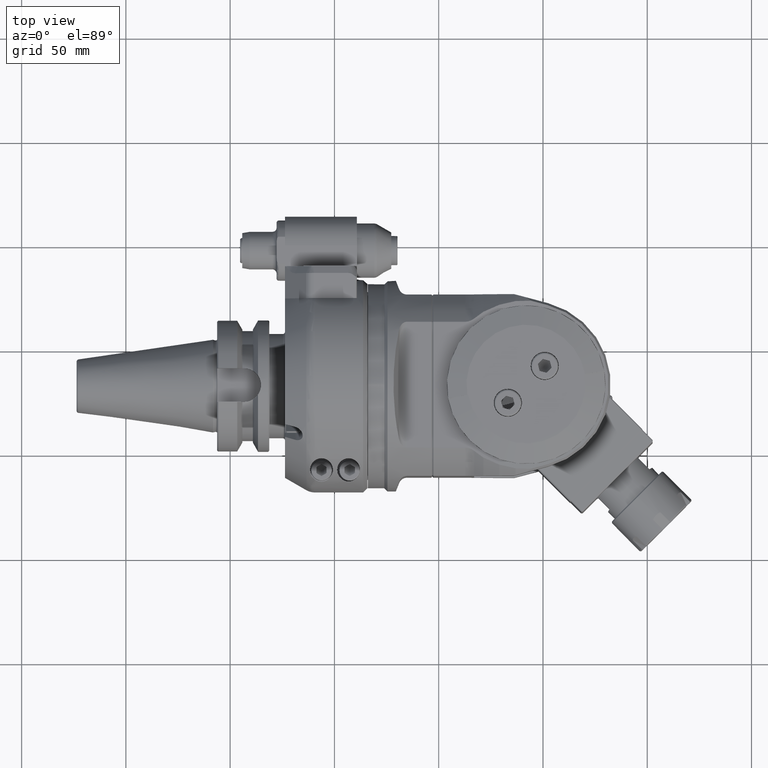
[diagram: clean part render]
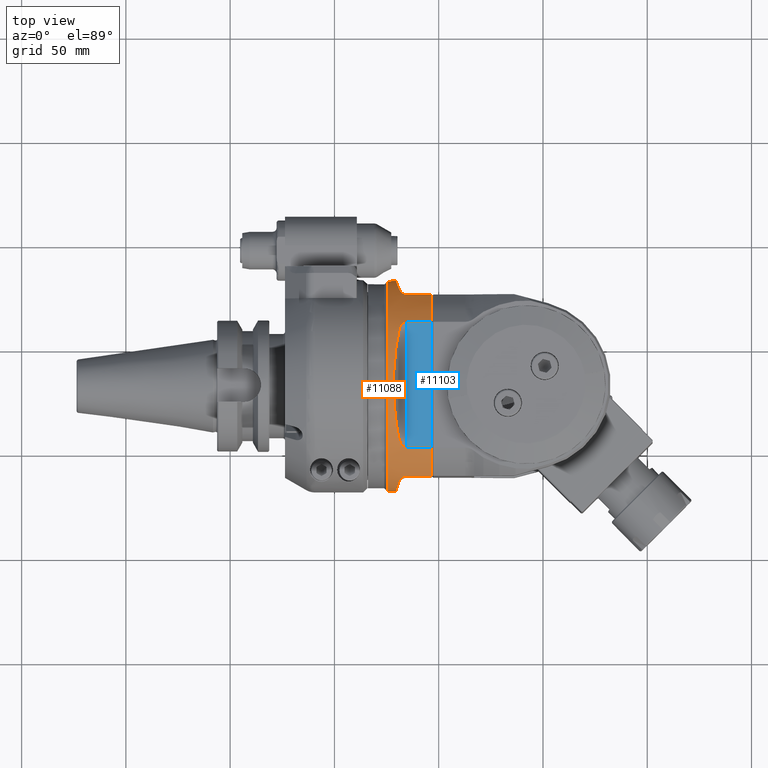
[diagram: same view with the hole feature highlighted: cylindrical wall and planar end face, labeled with their STEP entity ids]
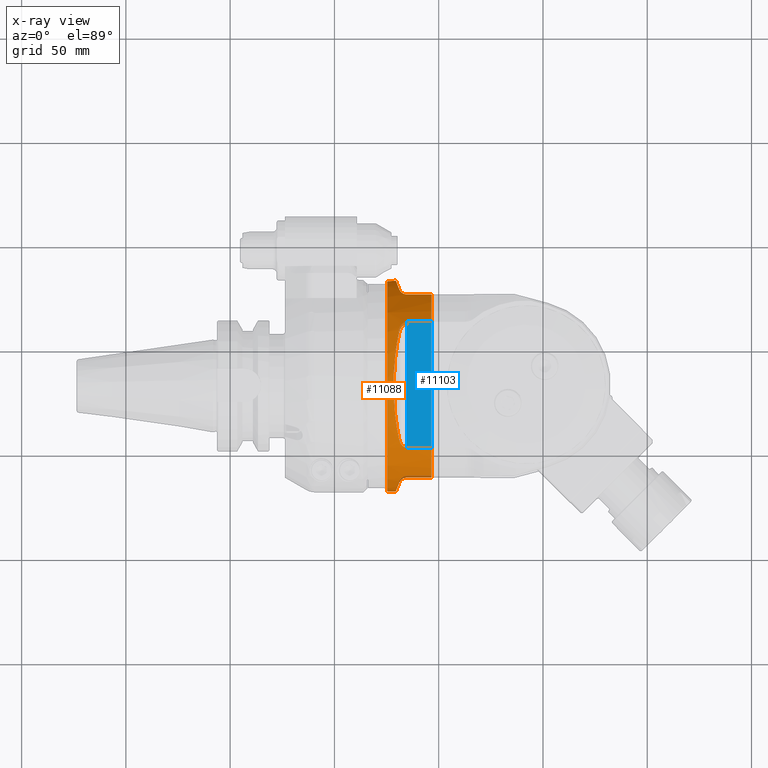
[diagram: x-ray of the same camera — body ghosted, the hole faces saturated]
A machine part, top view. The highlighted faces form one hole feature of diameter 101 mm: the cylindrical wall (entity #11088, orange) and its adjacent planar end face (entity #11103, blue) — they share a circular edge in the B-rep.
The next image is the same camera in x-ray (body ghosted, the hole faces saturated) — the bore reads through the body.
Wall:
#27=ELLIPSE('',#12123,53.7409775100342,50.5);
#28=ELLIPSE('',#12124,53.7409775100342,50.5);
#29=ELLIPSE('',#12125,53.7409775100342,50.5);
#30=ELLIPSE('',#12126,53.7409775100342,50.5);
#31=ELLIPSE('',#12127,53.7409775100342,50.5);
#1278=FACE_OUTER_BOUND('',#1998,.T.);
#1998=EDGE_LOOP('',(#9263,#9264,#9265,#9266,#9267,#9268,#9269,#9270,#9271,
#9272,#9273,#9274,#9275,#9276,#9277,#9278,#9279,#9280,#9281,#9282,#9283,
#9284,#9285,#9286,#9287,#9288,#9289,#9290));
#2629=CIRCLE('',#12111,50.5);
#2630=CIRCLE('',#12114,50.5);
#2631=CIRCLE('',#12118,50.5);
#2632=CIRCLE('',#12121,50.5);
#2633=CIRCLE('',#12128,50.5);
#2902=B_SPLINE_CURVE_WITH_KNOTS('',3,(#48979,#48980,#48981,#48982,#48983,
#48984,#48985,#48986,#48987,#48988,#48989,#48990),.UNSPECIFIED.,.F.,.F.,
(4,2,2,2,2,4),(0.,0.0707986919929739,0.141597383985948,0.283194767971895,
0.489170114231951,0.707654054014349),.UNSPECIFIED.);
#2903=B_SPLINE_CURVE_WITH_KNOTS('',3,(#48995,#48996,#48997,#48998,#48999,
#49000,#49001,#49002,#49003,#49004,#49005,#49006),.UNSPECIFIED.,.F.,.F.,
(4,2,2,2,2,4),(1.39221714496115,1.42895711617555,1.72925476842741,1.87448330676103,
1.94709757592783,2.01971184509464),.UNSPECIFIED.);
#2904=B_SPLINE_CURVE_WITH_KNOTS('',3,(#49010,#49011,#49012,#49013,#49014,
#49015,#49016,#49017,#49018,#49019,#49020,#49021),.UNSPECIFIED.,.F.,.F.,
(4,2,2,2,2,4),(2.01971184509464,2.09232611426145,2.16494038342826,2.31016892176187,
2.61046657401374,2.64720654523586),.UNSPECIFIED.);
#2905=B_SPLINE_CURVE_WITH_KNOTS('',3,(#49026,#49027,#49028,#49029,#49030,
#49031,#49032,#49033,#49034,#49035,#49036,#49037),.UNSPECIFIED.,.F.,.F.,
(4,2,2,2,2,4),(4.72371969336659,4.94220363315019,5.14817897941024,5.28977636339619,
5.36057505538916,5.43137374738214),.UNSPECIFIED.);
#2906=B_SPLINE_CURVE_WITH_KNOTS('',3,(#49041,#49042,#49043,#49044,#49045,
#49046,#49047,#49048,#49049,#49050,#49051,#49052),.UNSPECIFIED.,.F.,.F.,
(4,2,2,2,2,4),(0.,0.0707986919929739,0.141597383985948,0.283194767971896,
0.489170114231951,0.707654054014349),.UNSPECIFIED.);
#2907=B_SPLINE_CURVE_WITH_KNOTS('',3,(#49057,#49058,#49059,#49060,#49061,
#49062,#49063,#49064,#49065,#49066,#49067,#49068),.UNSPECIFIED.,.F.,.F.,
(4,2,2,2,2,4),(3.41192899004806,3.44866896127019,3.74896661352205,3.89419515185567,
3.96680942102248,4.03942369018928),.UNSPECIFIED.);
#2908=B_SPLINE_CURVE_WITH_KNOTS('',3,(#49072,#49073,#49074,#49075,#49076,
#49077,#49078,#49079,#49080,#49081,#49082,#49083),.UNSPECIFIED.,.F.,.F.,
(4,2,2,2,2,4),(0.,0.0726142691668075,0.145228538333615,0.29045707666723,
0.590754728919096,0.62749470014656),.UNSPECIFIED.);
#2909=B_SPLINE_CURVE_WITH_KNOTS('',3,(#49088,#49089,#49090,#49091,#49092,
#49093,#49094,#49095,#49096,#49097,#49098,#49099),.UNSPECIFIED.,.F.,.F.,
(4,2,2,2,2,4),(4.72371969336659,4.94220363315019,5.14817897941024,5.28977636339619,
5.36057505538916,5.43137374738214),.UNSPECIFIED.);
#3390=LINE('',#48991,#4204);
#3391=LINE('',#48993,#4205);
#3392=LINE('',#49022,#4206);
#3393=LINE('',#49024,#4207);
#3394=LINE('',#49053,#4208);
#3395=LINE('',#49055,#4209);
#3396=LINE('',#49084,#4210);
#3397=LINE('',#49086,#4211);
#3398=LINE('',#49102,#4212);
#4204=VECTOR('',#14455,11.69916984716);
#4205=VECTOR('',#14456,11.69916984716);
#4206=VECTOR('',#14459,11.69916984716);
#4207=VECTOR('',#14460,11.69916984716);
#4208=VECTOR('',#14463,11.69916984716);
#4209=VECTOR('',#14464,11.69916984716);
#4210=VECTOR('',#14467,11.69916984716);
#4211=VECTOR('',#14468,11.69916984716);
#4212=VECTOR('',#14471,50.5);
#5237=VERTEX_POINT('',#48925);
#5238=VERTEX_POINT('',#48929);
#5239=VERTEX_POINT('',#48935);
#5240=VERTEX_POINT('',#48941);
#5241=VERTEX_POINT('',#48947);
#5242=VERTEX_POINT('',#48954);
#5243=VERTEX_POINT('',#48961);
#5244=VERTEX_POINT('',#48967);
#5245=VERTEX_POINT('',#48975);
#5246=VERTEX_POINT('',#48976);
#5247=VERTEX_POINT('',#48978);
#5248=VERTEX_POINT('',#48992);
#5249=VERTEX_POINT('',#48994);
#5250=VERTEX_POINT('',#49007);
#5251=VERTEX_POINT('',#49009);
#5252=VERTEX_POINT('',#49023);
#5253=VERTEX_POINT('',#49025);
#5254=VERTEX_POINT('',#49038);
#5255=VERTEX_POINT('',#49040);
#5256=VERTEX_POINT('',#49054);
#5257=VERTEX_POINT('',#49056);
#5258=VERTEX_POINT('',#49069);
#5259=VERTEX_POINT('',#49071);
#5260=VERTEX_POINT('',#49085);
#5261=VERTEX_POINT('',#49087);
#5262=VERTEX_POINT('',#49101);
#6649=EDGE_CURVE('',#5238,#5239,#2629,.T.);
#6653=EDGE_CURVE('',#5240,#5241,#2630,.T.);
#6658=EDGE_CURVE('',#5242,#5243,#2631,.T.);
#6662=EDGE_CURVE('',#5244,#5237,#2632,.T.);
#6663=EDGE_CURVE('',#5245,#5246,#27,.T.);
#6664=EDGE_CURVE('',#5247,#5245,#2902,.T.);
#6665=EDGE_CURVE('',#5247,#5243,#3390,.T.);
#6666=EDGE_CURVE('',#5242,#5248,#3391,.T.);
#6667=EDGE_CURVE('',#5249,#5248,#2903,.T.);
#6668=EDGE_CURVE('',#5250,#5249,#28,.T.);
#6669=EDGE_CURVE('',#5251,#5250,#2904,.T.);
#6670=EDGE_CURVE('',#5251,#5241,#3392,.T.);
#6671=EDGE_CURVE('',#5240,#5252,#3393,.T.);
#6672=EDGE_CURVE('',#5253,#5252,#2905,.T.);
#6673=EDGE_CURVE('',#5254,#5253,#29,.T.);
#6674=EDGE_CURVE('',#5255,#5254,#2906,.T.);
#6675=EDGE_CURVE('',#5255,#5239,#3394,.T.);
#6676=EDGE_CURVE('',#5238,#5256,#3395,.T.);
#6677=EDGE_CURVE('',#5257,#5256,#2907,.T.);
#6678=EDGE_CURVE('',#5258,#5257,#30,.T.);
#6679=EDGE_CURVE('',#5259,#5258,#2908,.T.);
#6680=EDGE_CURVE('',#5259,#5237,#3396,.T.);
#6681=EDGE_CURVE('',#5244,#5260,#3397,.T.);
#6682=EDGE_CURVE('',#5261,#5260,#2909,.T.);
#6683=EDGE_CURVE('',#5246,#5261,#31,.T.);
#6684=EDGE_CURVE('',#5246,#5262,#3398,.T.);
#6685=EDGE_CURVE('',#5262,#5262,#2633,.T.);
#9263=ORIENTED_EDGE('',*,*,#6663,.F.);
#9264=ORIENTED_EDGE('',*,*,#6664,.F.);
#9265=ORIENTED_EDGE('',*,*,#6665,.T.);
#9266=ORIENTED_EDGE('',*,*,#6658,.F.);
#9267=ORIENTED_EDGE('',*,*,#6666,.T.);
#9268=ORIENTED_EDGE('',*,*,#6667,.F.);
#9269=ORIENTED_EDGE('',*,*,#6668,.F.);
#9270=ORIENTED_EDGE('',*,*,#6669,.F.);
#9271=ORIENTED_EDGE('',*,*,#6670,.T.);
#9272=ORIENTED_EDGE('',*,*,#6653,.F.);
#9273=ORIENTED_EDGE('',*,*,#6671,.T.);
#9274=ORIENTED_EDGE('',*,*,#6672,.F.);
#9275=ORIENTED_EDGE('',*,*,#6673,.F.);
#9276=ORIENTED_EDGE('',*,*,#6674,.F.);
#9277=ORIENTED_EDGE('',*,*,#6675,.T.);
#9278=ORIENTED_EDGE('',*,*,#6649,.F.);
#9279=ORIENTED_EDGE('',*,*,#6676,.T.);
#9280=ORIENTED_EDGE('',*,*,#6677,.F.);
#9281=ORIENTED_EDGE('',*,*,#6678,.F.);
#9282=ORIENTED_EDGE('',*,*,#6679,.F.);
#9283=ORIENTED_EDGE('',*,*,#6680,.T.);
#9284=ORIENTED_EDGE('',*,*,#6662,.F.);
#9285=ORIENTED_EDGE('',*,*,#6681,.T.);
#9286=ORIENTED_EDGE('',*,*,#6682,.F.);
#9287=ORIENTED_EDGE('',*,*,#6683,.F.);
#9288=ORIENTED_EDGE('',*,*,#6684,.T.);
#9289=ORIENTED_EDGE('',*,*,#6685,.F.);
#9290=ORIENTED_EDGE('',*,*,#6684,.F.);
#10646=CYLINDRICAL_SURFACE('',#12122,50.5);
#11088=ADVANCED_FACE('',(#1278),#10646,.T.);
#12111=AXIS2_PLACEMENT_3D('',#48936,#14425,#14426);
#12114=AXIS2_PLACEMENT_3D('',#48948,#14432,#14433);
#12118=AXIS2_PLACEMENT_3D('',#48962,#14442,#14443);
#12121=AXIS2_PLACEMENT_3D('',#48973,#14449,#14450);
#12122=AXIS2_PLACEMENT_3D('',#48974,#14451,#14452);
#12123=AXIS2_PLACEMENT_3D('',#48977,#14453,#14454);
#12124=AXIS2_PLACEMENT_3D('',#49008,#14457,#14458);
#12125=AXIS2_PLACEMENT_3D('',#49039,#14461,#14462);
#12126=AXIS2_PLACEMENT_3D('',#49070,#14465,#14466);
#12127=AXIS2_PLACEMENT_3D('',#49100,#14469,#14470);
#12128=AXIS2_PLACEMENT_3D('',#49103,#14472,#14473);
#14425=DIRECTION('center_axis',(1.,0.,0.));
#14426=DIRECTION('ref_axis',(0.,-0.801980198019817,-0.597350618970212));
#14432=DIRECTION('center_axis',(1.,0.,0.));
#14433=DIRECTION('ref_axis',(0.,0.507950706470489,-0.861386138613881));
#14442=DIRECTION('center_axis',(1.,0.,0.));
#14443=DIRECTION('ref_axis',(0.,0.801980198019817,0.597350618970212));
#14449=DIRECTION('center_axis',(1.,0.,0.));
#14450=DIRECTION('ref_axis',(0.,-0.507950706470489,0.861386138613881));
#14451=DIRECTION('center_axis',(1.,0.,0.));
#14452=DIRECTION('ref_axis',(0.,0.,-1.));
#14453=DIRECTION('center_axis',(0.939692620785897,0.,0.342020143325699));
#14454=DIRECTION('ref_axis',(0.342020143325699,0.,-0.939692620785897));
#14455=DIRECTION('',(1.,1.305790839728E-14,0.));
#14456=DIRECTION('',(-1.,1.639830356867E-14,-4.798022155279E-14));
#14457=DIRECTION('center_axis',(0.939692620785897,0.342020143325699,0.));
#14458=DIRECTION('ref_axis',(-0.342020143325699,0.939692620785897,0.));
#14459=DIRECTION('',(1.,-1.600960303964E-12,-4.855112545481E-12));
#14460=DIRECTION('',(-1.,-7.488558629694E-13,-2.058898114733E-13));
#14461=DIRECTION('center_axis',(0.939692620785897,0.,-0.342020143325699));
#14462=DIRECTION('ref_axis',(-0.342020143325699,0.,-0.939692620785897));
#14463=DIRECTION('',(1.,-4.823226955208E-12,1.311864285494E-12));
#14464=DIRECTION('',(-1.,-1.60156764854E-12,4.853594184039E-12));
#14465=DIRECTION('center_axis',(0.939692620785897,-0.342020143325699,0.));
#14466=DIRECTION('ref_axis',(0.342020143325699,0.939692620785897,0.));
#14467=DIRECTION('',(1.,1.579095899206E-14,4.85875661294E-14));
#14468=DIRECTION('',(-1.,0.,0.));
#14469=DIRECTION('center_axis',(0.939692620785897,0.,0.342020143325699));
#14470=DIRECTION('ref_axis',(0.342020143325699,0.,-0.939692620785897));
#14471=DIRECTION('',(-1.,0.,0.));
#14472=DIRECTION('center_axis',(-1.,0.,0.));
#14473=DIRECTION('ref_axis',(0.,0.,-1.));
#48925=CARTESIAN_POINT('',(61.5,-40.5,30.166206258));
#48929=CARTESIAN_POINT('',(61.5,-40.49999999998,-30.16620625805));
#48935=CARTESIAN_POINT('',(61.5,-25.65151067682,-43.49999999998));
#48936=CARTESIAN_POINT('Origin',(61.5,0.,0.));
#48941=CARTESIAN_POINT('',(61.5,25.65151067676,-43.5));
#48947=CARTESIAN_POINT('',(61.5,40.49999999998,-30.16620625805));
#48948=CARTESIAN_POINT('Origin',(61.5,0.,0.));
#48954=CARTESIAN_POINT('',(61.5,40.5,30.166206258));
#48961=CARTESIAN_POINT('',(61.5,25.65151067676,43.5));
#48962=CARTESIAN_POINT('Origin',(61.5,0.,0.));
#48967=CARTESIAN_POINT('',(61.5,-25.65151067676,43.5));
#48973=CARTESIAN_POINT('Origin',(61.5,0.,0.));
#48974=CARTESIAN_POINT('Origin',(54.,0.,0.));
#48975=CARTESIAN_POINT('',(46.0420596697,20.54497529833,46.13191942669));
#48976=CARTESIAN_POINT('',(44.4522083601363,-6.18446633569414E-15,50.5));
#48977=CARTESIAN_POINT('Origin',(62.8327051905814,0.,0.));
#48978=CARTESIAN_POINT('',(49.80083015284,25.65151067676,43.5));
#48979=CARTESIAN_POINT('Ctrl Pts',(49.80083015284,25.6515106767613,43.5));
#48980=CARTESIAN_POINT('Ctrl Pts',(49.5648345128634,25.6515106767613,43.5));
#48981=CARTESIAN_POINT('Ctrl Pts',(49.3312898173344,25.6157360957754,43.5211459292709));
#48982=CARTESIAN_POINT('Ctrl Pts',(48.8832183341842,25.4812309673765,43.6000337972868));
#48983=CARTESIAN_POINT('Ctrl Pts',(48.6686765546346,25.3825233441242,43.6577296610543));
#48984=CARTESIAN_POINT('Ctrl Pts',(48.0698485572236,25.0165055154328,43.8691676187085));
#48985=CARTESIAN_POINT('Ctrl Pts',(47.7306494574058,24.6766133655279,44.0620967126081));
#48986=CARTESIAN_POINT('Ctrl Pts',(47.0851084812424,23.8335951861058,44.5256644059013));
#48987=CARTESIAN_POINT('Ctrl Pts',(46.7583041254923,23.1646164421368,44.8784814200201));
#48988=CARTESIAN_POINT('Ctrl Pts',(46.3267854903414,21.9593562597412,45.480960058923));
#48989=CARTESIAN_POINT('Ctrl Pts',(46.1585318980655,21.2635177273003,45.8119146092607));
#48990=CARTESIAN_POINT('Ctrl Pts',(46.0420596696978,20.5449752983319,46.1319194266934));
#48991=CARTESIAN_POINT('',(49.80083015284,25.65151067676,43.5));
#48992=CARTESIAN_POINT('',(49.80083015284,40.5,30.166206258));
#48993=CARTESIAN_POINT('',(61.5,40.5,30.166206258));
#48994=CARTESIAN_POINT('',(46.04205966972,43.13191942663,26.26571009082));
#48995=CARTESIAN_POINT('Ctrl Pts',(46.0420596697218,43.1319194266276,26.2657100908181));
#48996=CARTESIAN_POINT('Ctrl Pts',(46.0665039590391,43.0647592936975,26.3759962940924));
#48997=CARTESIAN_POINT('Ctrl Pts',(46.0930537609184,42.9974152250804,26.485631110282));
#48998=CARTESIAN_POINT('Ctrl Pts',(46.3568291682656,42.3792892606509,27.4834414244347));
#48999=CARTESIAN_POINT('Ctrl Pts',(46.7350482404286,41.8235190742942,28.3142784956545));
#49000=CARTESIAN_POINT('Ctrl Pts',(47.60883448171,41.1344791338858,29.2977447429081));
#49001=CARTESIAN_POINT('Ctrl Pts',(47.9765708439716,40.9112089177917,29.6073565647294));
#49002=CARTESIAN_POINT('Ctrl Pts',(48.6165518211133,40.6725565576759,29.933447583433));
#49003=CARTESIAN_POINT('Ctrl Pts',(48.8444950004048,40.6086287085637,30.0199021234794));
#49004=CARTESIAN_POINT('Ctrl Pts',(49.315601618798,40.522324707648,30.1362978710057));
#49005=CARTESIAN_POINT('Ctrl Pts',(49.5587825889506,40.5,30.1662062579967));
#49006=CARTESIAN_POINT('Ctrl Pts',(49.80083015284,40.5,30.1662062579967));
#49007=CARTESIAN_POINT('',(46.0420596697,43.13191942667,-26.26571009075));
#49008=CARTESIAN_POINT('Origin',(61.7407944877827,0.,0.));
#49009=CARTESIAN_POINT('',(49.80083015284,40.5,-30.166206258));
#49010=CARTESIAN_POINT('Ctrl Pts',(49.80083015284,40.5,-30.1662062579967));
#49011=CARTESIAN_POINT('Ctrl Pts',(49.5587825889506,40.5,-30.1662062579967));
#49012=CARTESIAN_POINT('Ctrl Pts',(49.315601618798,40.522324707648,-30.1362978710057));
#49013=CARTESIAN_POINT('Ctrl Pts',(48.8444950004048,40.6086287085637,-30.0199021234794));
#49014=CARTESIAN_POINT('Ctrl Pts',(48.6165518211133,40.6725565576759,-29.933447583433));
#49015=CARTESIAN_POINT('Ctrl Pts',(47.9765708439716,40.9112089177917,-29.6073565647295));
#49016=CARTESIAN_POINT('Ctrl Pts',(47.60883448171,41.1344791338858,-29.2977447429081));
#49017=CARTESIAN_POINT('Ctrl Pts',(46.7350482404286,41.8235190742942,-28.3142784956545));
#49018=CARTESIAN_POINT('Ctrl Pts',(46.3568291682656,42.3792892606509,-27.4834414244347));
#49019=CARTESIAN_POINT('Ctrl Pts',(46.0930537609124,42.9974152250946,-26.4856311102591));
#49020=CARTESIAN_POINT('Ctrl Pts',(46.0665039590279,43.0647592937259,-26.3759962940463));
#49021=CARTESIAN_POINT('Ctrl Pts',(46.0420596697063,43.13191942667,-26.2657100907486));
#49022=CARTESIAN_POINT('',(49.80083015284,40.5,-30.166206258));
#49023=CARTESIAN_POINT('',(49.80083015284,25.65151067676,-43.5));
#49024=CARTESIAN_POINT('',(61.5,25.65151067677,-43.5));
#49025=CARTESIAN_POINT('',(46.0420596697,20.54497529832,-46.1319194267));
#49026=CARTESIAN_POINT('Ctrl Pts',(46.0420596696959,20.5449752983201,-46.1319194266987));
#49027=CARTESIAN_POINT('Ctrl Pts',(46.1585318980637,21.2635177272927,-45.8119146092643));
#49028=CARTESIAN_POINT('Ctrl Pts',(46.3267854903401,21.9593562597378,-45.4809600589247));
#49029=CARTESIAN_POINT('Ctrl Pts',(46.7583041254923,23.1646164421368,-44.8784814200201));
#49030=CARTESIAN_POINT('Ctrl Pts',(47.0851084812424,23.8335951861057,-44.5256644059013));
#49031=CARTESIAN_POINT('Ctrl Pts',(47.7306494574058,24.6766133655279,-44.0620967126081));
#49032=CARTESIAN_POINT('Ctrl Pts',(48.0698485572236,25.0165055154328,-43.8691676187085));
#49033=CARTESIAN_POINT('Ctrl Pts',(48.6686765546346,25.3825233441242,-43.6577296610543));
#49034=CARTESIAN_POINT('Ctrl Pts',(48.8832183341842,25.4812309673765,-43.6000337972868));
#49035=CARTESIAN_POINT('Ctrl Pts',(49.3312898173344,25.6157360957754,-43.5211459292709));
#49036=CARTESIAN_POINT('Ctrl Pts',(49.5648345128634,25.6515106767613,-43.5));
#49037=CARTESIAN_POINT('Ctrl Pts',(49.80083015284,25.6515106767613,-43.5));
#49038=CARTESIAN_POINT('',(46.0420596697,-20.54497529833,-46.13191942669));
#49039=CARTESIAN_POINT('Origin',(62.8327051905854,0.,0.));
#49040=CARTESIAN_POINT('',(49.80083015284,-25.65151067676,-43.5));
#49041=CARTESIAN_POINT('Ctrl Pts',(49.80083015284,-25.6515106767613,-43.5));
#49042=CARTESIAN_POINT('Ctrl Pts',(49.5648345128634,-25.6515106767613,-43.5));
#49043=CARTESIAN_POINT('Ctrl Pts',(49.3312898173344,-25.6157360957754,-43.5211459292709));
#49044=CARTESIAN_POINT('Ctrl Pts',(48.8832183341842,-25.4812309673765,-43.6000337972868));
#49045=CARTESIAN_POINT('Ctrl Pts',(48.6686765546346,-25.3825233441242,-43.6577296610543));
#49046=CARTESIAN_POINT('Ctrl Pts',(48.0698485572236,-25.0165055154328,-43.8691676187085));
#49047=CARTESIAN_POINT('Ctrl Pts',(47.7306494574058,-24.6766133655279,-44.0620967126081));
#49048=CARTESIAN_POINT('Ctrl Pts',(47.0851084812424,-23.8335951861057,-44.5256644059013));
#49049=CARTESIAN_POINT('Ctrl Pts',(46.7583041254923,-23.1646164421368,-44.8784814200201));
#49050=CARTESIAN_POINT('Ctrl Pts',(46.3267854903414,-21.9593562597412,-45.480960058923));
#49051=CARTESIAN_POINT('Ctrl Pts',(46.1585318980655,-21.2635177273003,-45.8119146092607));
#49052=CARTESIAN_POINT('Ctrl Pts',(46.0420596696978,-20.5449752983319,-46.1319194266934));
#49053=CARTESIAN_POINT('',(49.80083015284,-25.65151067676,-43.5));
#49054=CARTESIAN_POINT('',(49.80083015284,-40.5,-30.166206258));
#49055=CARTESIAN_POINT('',(61.5,-40.49999999998,-30.16620625805));
#49056=CARTESIAN_POINT('',(46.0420596697,-43.13191942667,-26.26571009075));
#49057=CARTESIAN_POINT('Ctrl Pts',(46.0420596697063,-43.13191942667,-26.2657100907486));
#49058=CARTESIAN_POINT('Ctrl Pts',(46.0665039590279,-43.0647592937259,-26.3759962940463));
#49059=CARTESIAN_POINT('Ctrl Pts',(46.0930537609124,-42.9974152250946,-26.4856311102591));
#49060=CARTESIAN_POINT('Ctrl Pts',(46.3568291682656,-42.3792892606509,-27.4834414244347));
#49061=CARTESIAN_POINT('Ctrl Pts',(46.7350482404286,-41.8235190742942,-28.3142784956545));
#49062=CARTESIAN_POINT('Ctrl Pts',(47.60883448171,-41.1344791338858,-29.2977447429081));
#49063=CARTESIAN_POINT('Ctrl Pts',(47.9765708439716,-40.9112089177917,-29.6073565647295));
#49064=CARTESIAN_POINT('Ctrl Pts',(48.6165518211133,-40.6725565576759,-29.933447583433));
#49065=CARTESIAN_POINT('Ctrl Pts',(48.8444950004048,-40.6086287085637,-30.0199021234794));
#49066=CARTESIAN_POINT('Ctrl Pts',(49.315601618798,-40.522324707648,-30.1362978710057));
#49067=CARTESIAN_POINT('Ctrl Pts',(49.5587825889506,-40.5,-30.1662062579967));
#49068=CARTESIAN_POINT('Ctrl Pts',(49.80083015284,-40.5,-30.1662062579967));
#49069=CARTESIAN_POINT('',(46.0420596697,-43.1319194267,26.2657100907));
#49070=CARTESIAN_POINT('Origin',(61.7407944877827,0.,0.));
#49071=CARTESIAN_POINT('',(49.80083015284,-40.5,30.166206258));
#49072=CARTESIAN_POINT('Ctrl Pts',(49.80083015284,-40.5,30.1662062579967));
#49073=CARTESIAN_POINT('Ctrl Pts',(49.5587825889506,-40.5,30.1662062579967));
#49074=CARTESIAN_POINT('Ctrl Pts',(49.315601618798,-40.522324707648,30.1362978710057));
#49075=CARTESIAN_POINT('Ctrl Pts',(48.8444950004048,-40.6086287085637,30.0199021234794));
#49076=CARTESIAN_POINT('Ctrl Pts',(48.6165518211133,-40.6725565576759,29.933447583433));
#49077=CARTESIAN_POINT('Ctrl Pts',(47.9765708439716,-40.9112089177917,29.6073565647294));
#49078=CARTESIAN_POINT('Ctrl Pts',(47.60883448171,-41.1344791338858,29.2977447429081));
#49079=CARTESIAN_POINT('Ctrl Pts',(46.7350482404286,-41.8235190742942,28.3142784956545));
#49080=CARTESIAN_POINT('Ctrl Pts',(46.3568291682656,-42.3792892606509,27.4834414244347));
#49081=CARTESIAN_POINT('Ctrl Pts',(46.0930537609082,-42.9974152251044,26.4856311102433));
#49082=CARTESIAN_POINT('Ctrl Pts',(46.0665039590202,-43.0647592937455,26.3759962940145));
#49083=CARTESIAN_POINT('Ctrl Pts',(46.0420596696957,-43.1319194266992,26.2657100907005));
#49084=CARTESIAN_POINT('',(49.80083015284,-40.5,30.166206258));
#49085=CARTESIAN_POINT('',(49.80083015284,-25.65151067676,43.5));
#49086=CARTESIAN_POINT('',(61.5,-25.65151067676,43.5));
#49087=CARTESIAN_POINT('',(46.0420596697,-20.54497529832,46.1319194267));
#49088=CARTESIAN_POINT('Ctrl Pts',(46.0420596696959,-20.5449752983201,46.1319194266987));
#49089=CARTESIAN_POINT('Ctrl Pts',(46.1585318980636,-21.2635177272927,45.8119146092643));
#49090=CARTESIAN_POINT('Ctrl Pts',(46.3267854903401,-21.9593562597378,45.4809600589247));
#49091=CARTESIAN_POINT('Ctrl Pts',(46.7583041254923,-23.1646164421368,44.8784814200201));
#49092=CARTESIAN_POINT('Ctrl Pts',(47.0851084812424,-23.8335951861057,44.5256644059013));
#49093=CARTESIAN_POINT('Ctrl Pts',(47.7306494574058,-24.6766133655279,44.0620967126081));
#49094=CARTESIAN_POINT('Ctrl Pts',(48.0698485572236,-25.0165055154328,43.8691676187085));
#49095=CARTESIAN_POINT('Ctrl Pts',(48.6686765546346,-25.3825233441242,43.6577296610543));
#49096=CARTESIAN_POINT('Ctrl Pts',(48.8832183341842,-25.4812309673765,43.6000337972868));
#49097=CARTESIAN_POINT('Ctrl Pts',(49.3312898173344,-25.6157360957754,43.5211459292709));
#49098=CARTESIAN_POINT('Ctrl Pts',(49.5648345128634,-25.6515106767613,43.5));
#49099=CARTESIAN_POINT('Ctrl Pts',(49.80083015284,-25.6515106767613,43.5));
#49100=CARTESIAN_POINT('Origin',(62.8327051905814,0.,0.));
#49101=CARTESIAN_POINT('',(40.5,0.,50.5));
#49102=CARTESIAN_POINT('',(54.,-6.18446633569414E-15,50.5));
#49103=CARTESIAN_POINT('Origin',(40.5,0.,0.));
End face:
#600=PLANE('',#12152);
#1293=FACE_OUTER_BOUND('',#2015,.T.);
#2015=EDGE_LOOP('',(#9341,#9342,#9343,#9344));
#3388=LINE('',#48955,#4202);
#3391=LINE('',#48993,#4205);
#3392=LINE('',#49022,#4206);
#3408=LINE('',#49146,#4222);
#4202=VECTOR('',#14437,60.33241251605);
#4205=VECTOR('',#14456,11.69916984716);
#4206=VECTOR('',#14459,11.69916984716);
#4222=VECTOR('',#14531,60.33241251599);
#5241=VERTEX_POINT('',#48947);
#5242=VERTEX_POINT('',#48954);
#5248=VERTEX_POINT('',#48992);
#5251=VERTEX_POINT('',#49009);
#6656=EDGE_CURVE('',#5242,#5241,#3388,.T.);
#6666=EDGE_CURVE('',#5242,#5248,#3391,.T.);
#6670=EDGE_CURVE('',#5251,#5241,#3392,.T.);
#6704=EDGE_CURVE('',#5248,#5251,#3408,.T.);
#9341=ORIENTED_EDGE('',*,*,#6704,.F.);
#9342=ORIENTED_EDGE('',*,*,#6666,.F.);
#9343=ORIENTED_EDGE('',*,*,#6656,.T.);
#9344=ORIENTED_EDGE('',*,*,#6670,.F.);
#11103=ADVANCED_FACE('',(#1293),#600,.F.);
#12152=AXIS2_PLACEMENT_3D('',#49145,#14529,#14530);
#14437=DIRECTION('',(0.,-3.073831234315E-13,-1.));
#14456=DIRECTION('',(-1.,1.639830356867E-14,-4.798022155279E-14));
#14459=DIRECTION('',(1.,-1.600960303964E-12,-4.855112545481E-12));
#14529=DIRECTION('center_axis',(0.,-1.,0.));
#14530=DIRECTION('ref_axis',(1.,0.,0.));
#14531=DIRECTION('',(0.,0.,-1.));
#48947=CARTESIAN_POINT('',(61.5,40.49999999998,-30.16620625805));
#48954=CARTESIAN_POINT('',(61.5,40.5,30.166206258));
#48955=CARTESIAN_POINT('',(61.5,40.5,30.166206258));
#48992=CARTESIAN_POINT('',(49.80083015284,40.5,30.166206258));
#48993=CARTESIAN_POINT('',(61.5,40.5,30.166206258));
#49009=CARTESIAN_POINT('',(49.80083015284,40.5,-30.166206258));
#49022=CARTESIAN_POINT('',(49.80083015284,40.5,-30.166206258));
#49145=CARTESIAN_POINT('Origin',(49.,40.5,60.6000024));
#49146=CARTESIAN_POINT('',(49.80083015284,40.5,30.166206258));